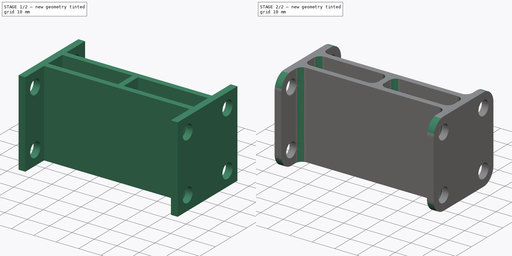
[diagram: build sequence overview — one tinted view per stage of 2, left to right]
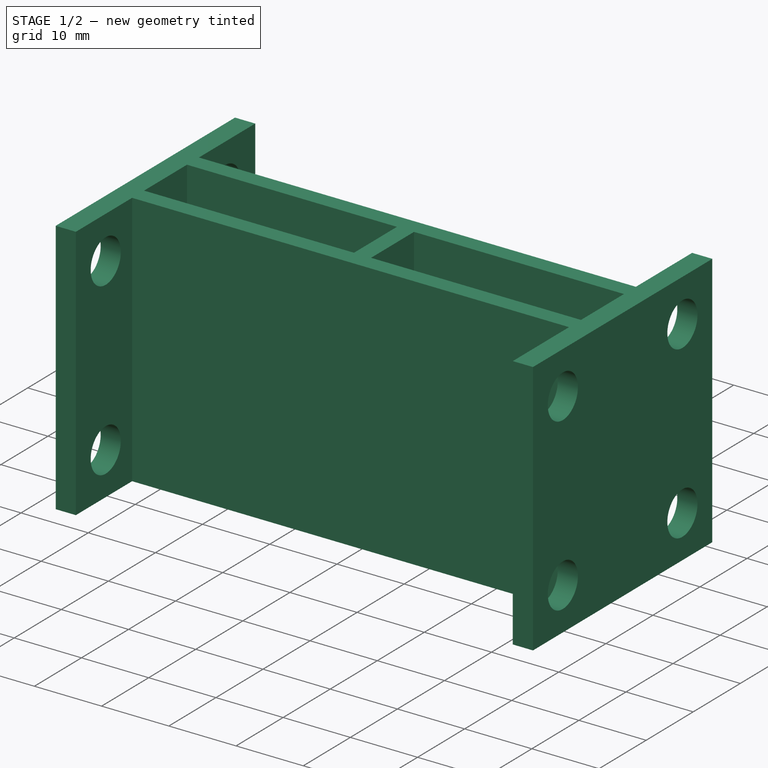
[diagram: stage 1 of 2 — iso view after this stage's code; geometry added in this stage tinted green]
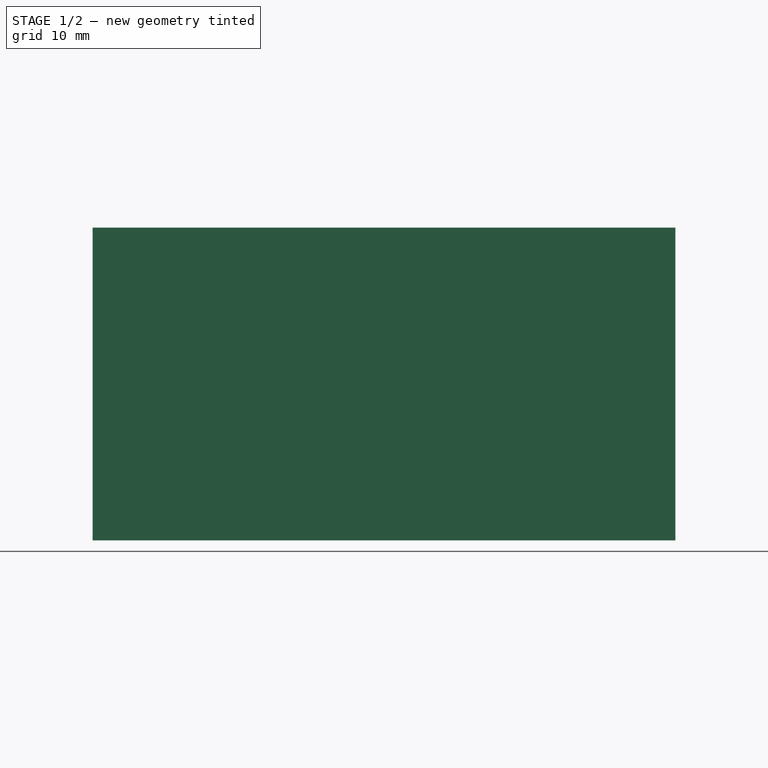
[diagram: stage 1 of 2 — front view after this stage's code; geometry added in this stage tinted green]
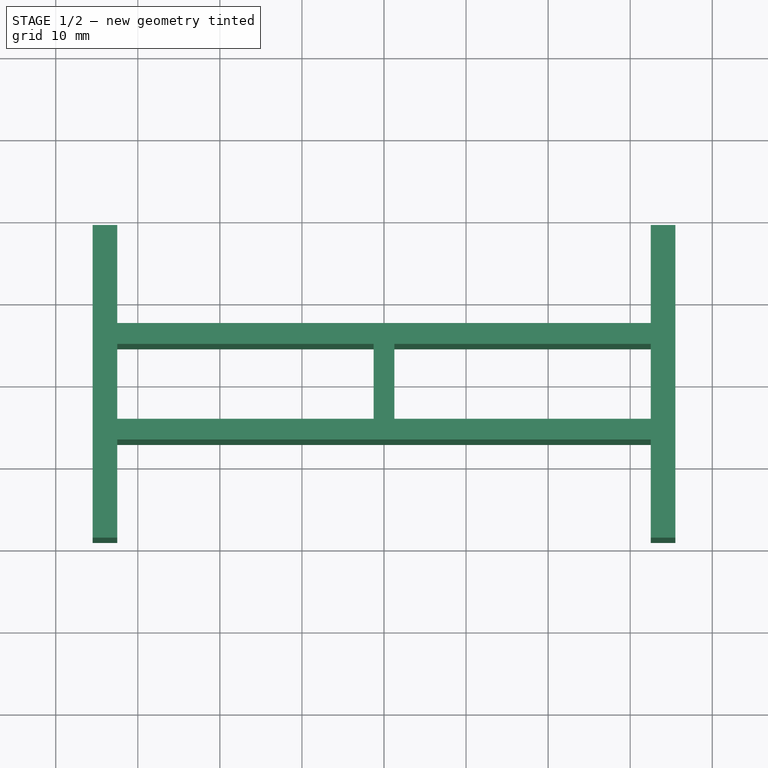
[diagram: stage 1 of 2 — top view after this stage's code; geometry added in this stage tinted green]
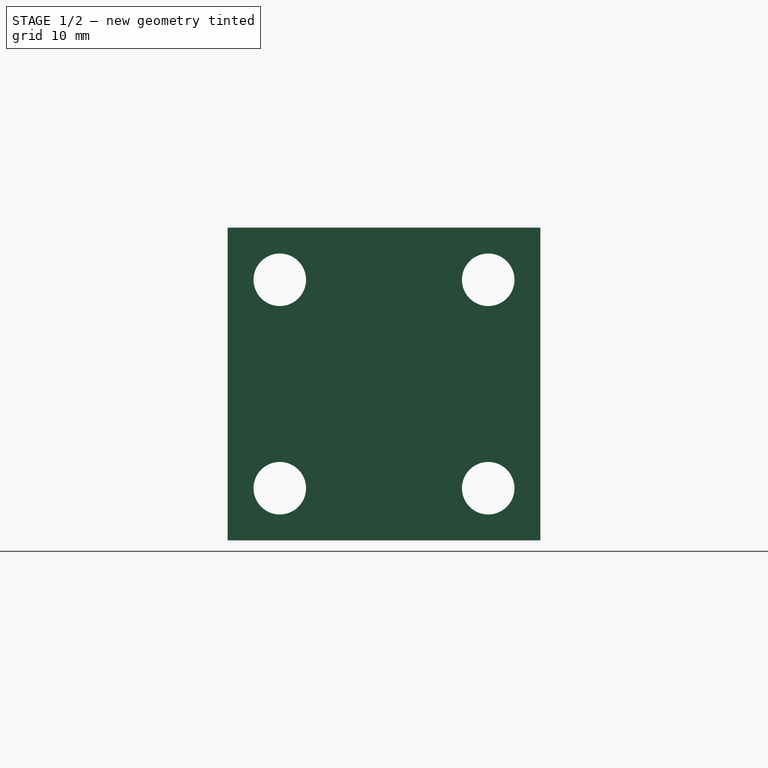
[diagram: stage 1 of 2 — right view after this stage's code; geometry added in this stage tinted green]
FCSTD DOCUMENT  (FreeCAD 0.19R24291 (Git))
Label: Stand_MicroManipulator_Tethering
License: All rights reserved
LicenseURL: http://en.wikipedia.org/wiki/All_rights_reserved
objects: Sketcher::SketchObject×2, PartDesign::Fillet×2, PartDesign::Pad×1, PartDesign::Pocket×1, PartDesign::Body×1
note: 11 computed .brp shape members not serialized (recipe doc carries the construction recipe); baked Part::Feature solids carry a one-line shape summary decoded from their .brp

FEATURE [Sketcher::SketchObject] Sketch
  FullyConstrained = true
  MapMode = 5
  Support = -> [XY_Plane]
  sketch-geometry (20):
    g0: LineSegment StartX=-32.5 StartY=7.1 StartZ=0 EndX=32.5 EndY=7.1 EndZ=0
    g1: LineSegment StartX=32.5 StartY=7.1 StartZ=0 EndX=32.5 EndY=19.05 EndZ=0
    g2: LineSegment StartX=32.5 StartY=19.05 StartZ=0 EndX=35.5 EndY=19.05 EndZ=0
    g3: LineSegment StartX=35.5 StartY=19.05 StartZ=0 EndX=35.5 EndY=-19.05 EndZ=0
    g4: LineSegment StartX=35.5 StartY=-19.05 StartZ=0 EndX=32.5 EndY=-19.05 EndZ=0
    g5: LineSegment StartX=32.5 StartY=-19.05 StartZ=0 EndX=32.5 EndY=-7.1 EndZ=0
    g6: LineSegment StartX=32.5 StartY=-7.1 StartZ=0 EndX=-32.5 EndY=-7.1 EndZ=0
    g7: LineSegment StartX=-32.5 StartY=-7.1 StartZ=0 EndX=-32.5 EndY=-19.05 EndZ=0
    g8: LineSegment StartX=-32.5 StartY=-19.05 StartZ=0 EndX=-35.5 EndY=-19.05 EndZ=0
    g9: LineSegment StartX=-35.5 StartY=-19.05 StartZ=0 EndX=-35.5 EndY=19.05 EndZ=0
    g10: LineSegment StartX=-35.5 StartY=19.05 StartZ=0 EndX=-32.5 EndY=19.05 EndZ=0
    g11: LineSegment StartX=-32.5 StartY=19.05 StartZ=0 EndX=-32.5 EndY=7.1 EndZ=0
    g12: LineSegment StartX=32.5 StartY=4.56 StartZ=0 EndX=32.5 EndY=-4.56 EndZ=0
    g13: LineSegment StartX=-32.5 StartY=-4.56 StartZ=0 EndX=-32.5 EndY=4.56 EndZ=0
    g14: LineSegment StartX=-1.27 StartY=4.56 StartZ=0 EndX=-1.27 EndY=-4.56 EndZ=0
    g15: LineSegment StartX=1.27 StartY=4.56 StartZ=0 EndX=1.27 EndY=-4.56 EndZ=0
    g16: LineSegment StartX=1.27 StartY=-4.56 StartZ=0 EndX=32.5 EndY=-4.56 EndZ=0
    g17: LineSegment StartX=32.5 StartY=4.56 StartZ=0 EndX=1.27 EndY=4.56 EndZ=0
    g18: LineSegment StartX=-1.27 StartY=4.56 StartZ=0 EndX=-32.5 EndY=4.56 EndZ=0
    g19: LineSegment StartX=-1.27 StartY=-4.56 StartZ=0 EndX=-32.5 EndY=-4.56 EndZ=0
  constraints (57):
    c: Coincident(g1,g0)
    c: Vertical(g1)
    c: Coincident(g2,g1)
    c: Horizontal(g2)
    c: Coincident(g3,g2)
    c: Vertical(g3)
    c: Coincident(g4,g3)
    c: Horizontal(g4)
    c: Coincident(g5,g4)
    c: Vertical(g5)
    c: Coincident(g6,g5)
    c: Horizontal(g6)
    c: Coincident(g7,g6)
    c: Vertical(g7)
    c: Coincident(g8,g7)
    c: Horizontal(g8)
    c: Coincident(g9,g8)
    c: Vertical(g9)
    c: Coincident(g10,g9)
    c: Horizontal(g10)
    c: Coincident(g11,g10)
    c: Coincident(g11,g0)
    c: Vertical(g13)
    c: Vertical(g11)
    c: DistanceY(g9,g9) = 38.1
    c: DistanceX(g0,g0) = 65
    c: DistanceX(g10,g10) = 3
    c: DistanceX(g2,g2) = 3
    c: Vertical(g0,g13)
    c: Vertical(g6,g13)
    c: Vertical(g12,g0)
    c: Vertical(g5,g12)
    c: DistanceY(g13,g0) = 2.54
    c: DistanceY(g6,g13) = 2.54
    c: Symmetric(g12,g12,g-1)
    c: Symmetric(g0,g0,g-2)
    c: Equal(g11,g7)
    c: Equal(g1,g5)
    c: DistanceY(g11,g11) = 11.95
    c: Equal(g7,g5)
    c: Vertical(g14)
    c: Vertical(g15)
    c: DistanceX(g14,g15) = 2.54
    c: Symmetric(g15,g14,g-2)
    c: Coincident(g16,g15)
    c: Coincident(g16,g12)
    c: Horizontal(g16)
    c: Coincident(g17,g12)
    c: Coincident(g17,g15)
    c: Horizontal(g17)
    c: Coincident(g18,g14)
    c: Coincident(g18,g13)
    c: Horizontal(g18)
    c: Coincident(g19,g14)
    c: Coincident(g19,g13)
    c: Horizontal(g19)
    c: DistanceY(g5,g12) = 2.54
FEATURE [PartDesign::Pad] Pad
  Direction = (1,1,1)
  Length = 38.1
  Length2 = 100
  Profile = -> Sketch
  Type = 0
FEATURE [Sketcher::SketchObject] Sketch001
  ExternalGeometry = -> [Pad]
  FullyConstrained = true
  MapMode = 5
  Placement = pos=(-35.5,0,0) rot=(0.57735,-0.57735,-0.57735;2.0944rad)
  Support = -> [Pad]
  sketch-geometry (4):
    g0: Circle CenterX=12.7 CenterY=31.75 CenterZ=0 NormalX=0 NormalY=0 NormalZ=1 AngleXU=0 Radius=3.2
    g1: Circle CenterX=12.7 CenterY=6.35 CenterZ=0 NormalX=0 NormalY=0 NormalZ=1 AngleXU=0 Radius=3.2
    g2: Circle CenterX=-12.7 CenterY=6.35 CenterZ=0 NormalX=0 NormalY=0 NormalZ=1 AngleXU=0 Radius=3.2
    g3: Circle CenterX=-12.7 CenterY=31.75 CenterZ=0 NormalX=0 NormalY=0 NormalZ=1 AngleXU=0 Radius=3.2
  constraints (13):
    c: Diameter(g0) = 6.4
    c: Diameter(g1) = 6.4
    c: Diameter(g3) = 6.4
    c: Diameter(g2) = 6.4
    c: DistanceX(g3,g0) = 25.4
    c: DistanceY(g2,g3) = 25.4
    c: Vertical(g0,g1)
    c: Horizontal(g1,g2)
    c: Distance(g-3) = 38.1
    c: Distance(g3,g-3) = 6.35
    c: Distance(g3,g-6) = 6.35
    c: Horizontal(g0,g3)
    c: Vertical(g3,g2)
FEATURE [PartDesign::Pocket] Pocket
  BaseFeature = -> Pad
  Length = 0
  Length2 = 100
  Profile = -> Sketch001
  Type = 3
  UpToFace = -> Pad [Face4]
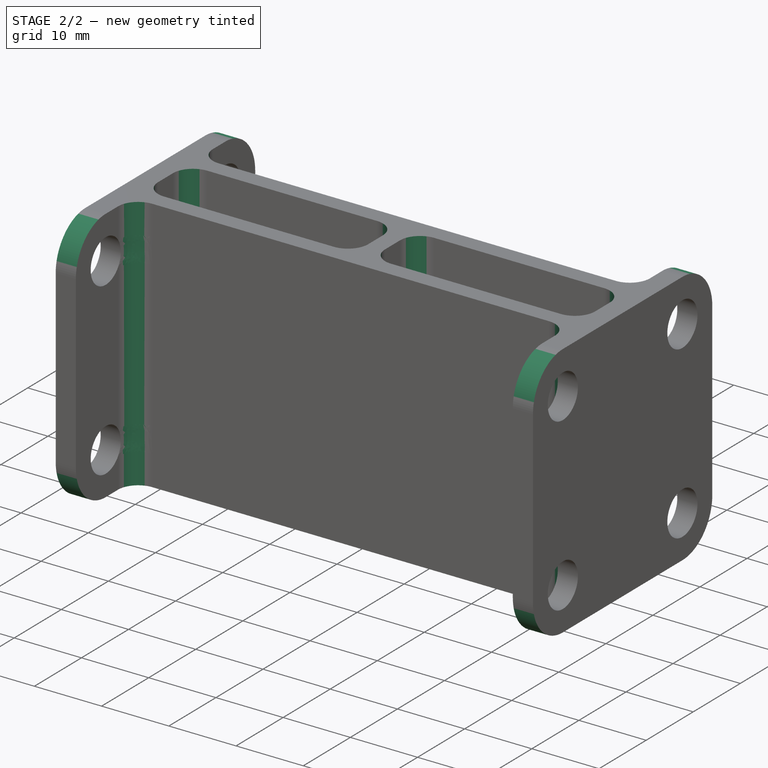
[diagram: stage 2 of 2 — iso view after this stage's code; geometry added in this stage tinted green]
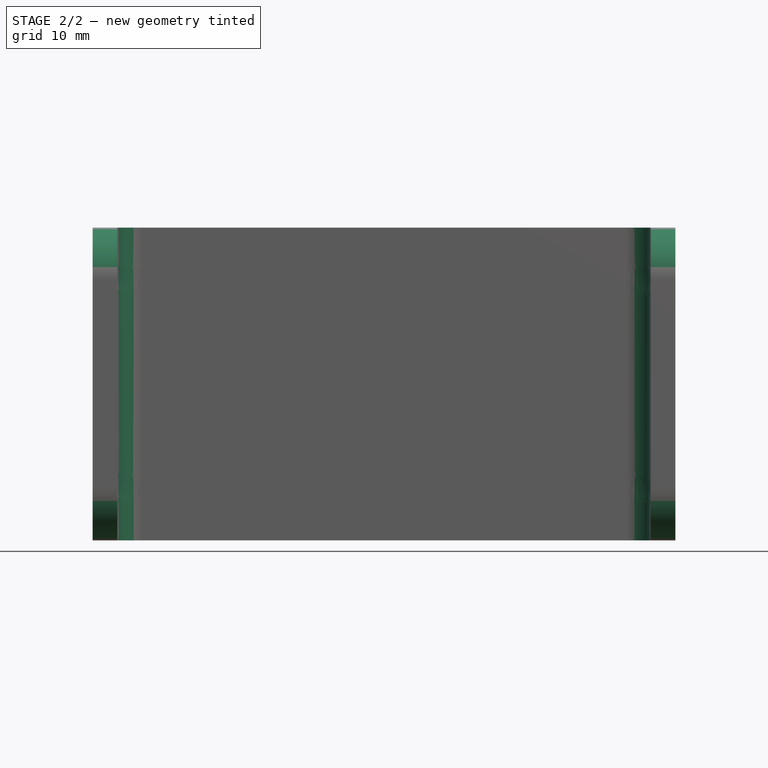
[diagram: stage 2 of 2 — front view after this stage's code; geometry added in this stage tinted green]
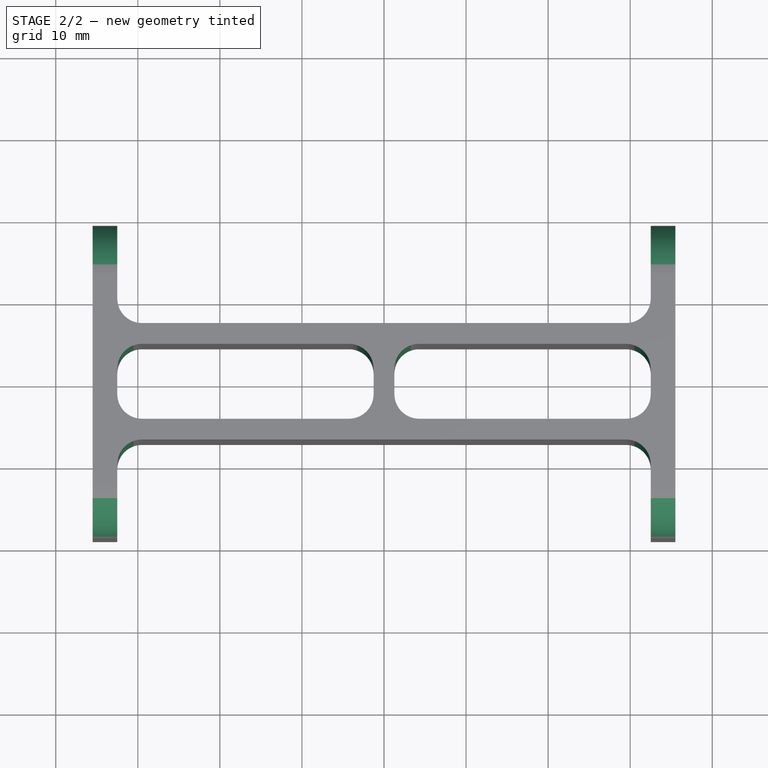
[diagram: stage 2 of 2 — top view after this stage's code; geometry added in this stage tinted green]
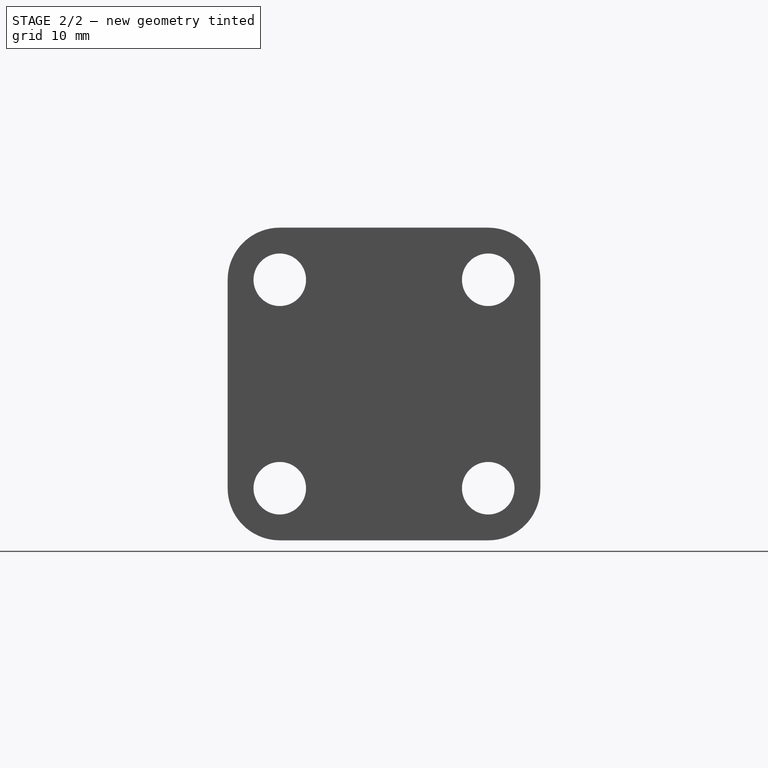
[diagram: stage 2 of 2 — right view after this stage's code; geometry added in this stage tinted green]
FEATURE [PartDesign::Fillet] Fillet
  Base = -> Pocket [Edge23,Edge21,Edge34,Edge15,Edge17,Edge32,Edge40,Edge38]
  BaseFeature = -> Pocket
  Radius = 6.35
  SupportTransform = false
FEATURE [PartDesign::Fillet] Fillet001
  Base = -> Fillet [Edge92,Edge94,Edge96,Edge99,Edge98,Edge97,Edge93,Edge95,Edge85,Edge6,Edge52,Edge82]
  BaseFeature = -> Fillet
  Radius = 3
  SupportTransform = false
FEATURE [PartDesign::Body] Body
  Group = -> [Sketch,Pad,Sketch001,Pocket,Fillet,Fillet001]
  Origin = -> Origin
  Tip = -> Fillet001
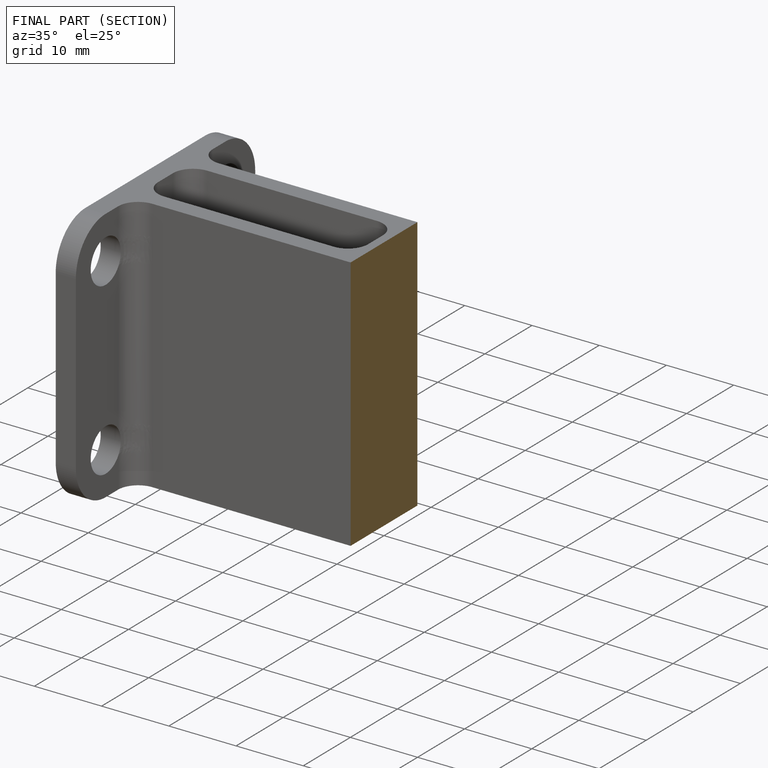
[diagram: finished part — half-section view (interior)]
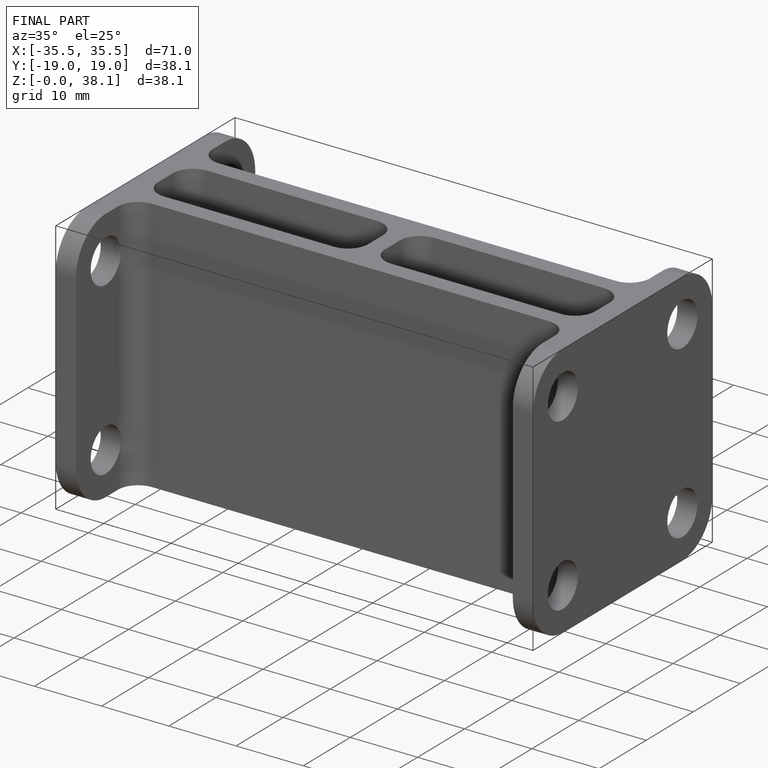
[diagram: finished part — iso view with bounding-box wireframe]
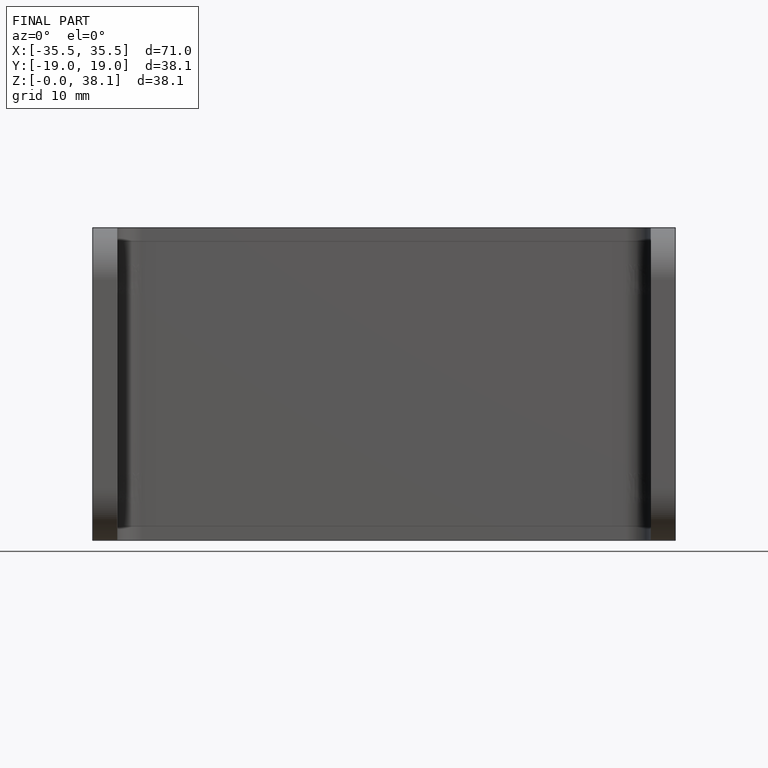
[diagram: finished part — front view with bounding-box wireframe]
